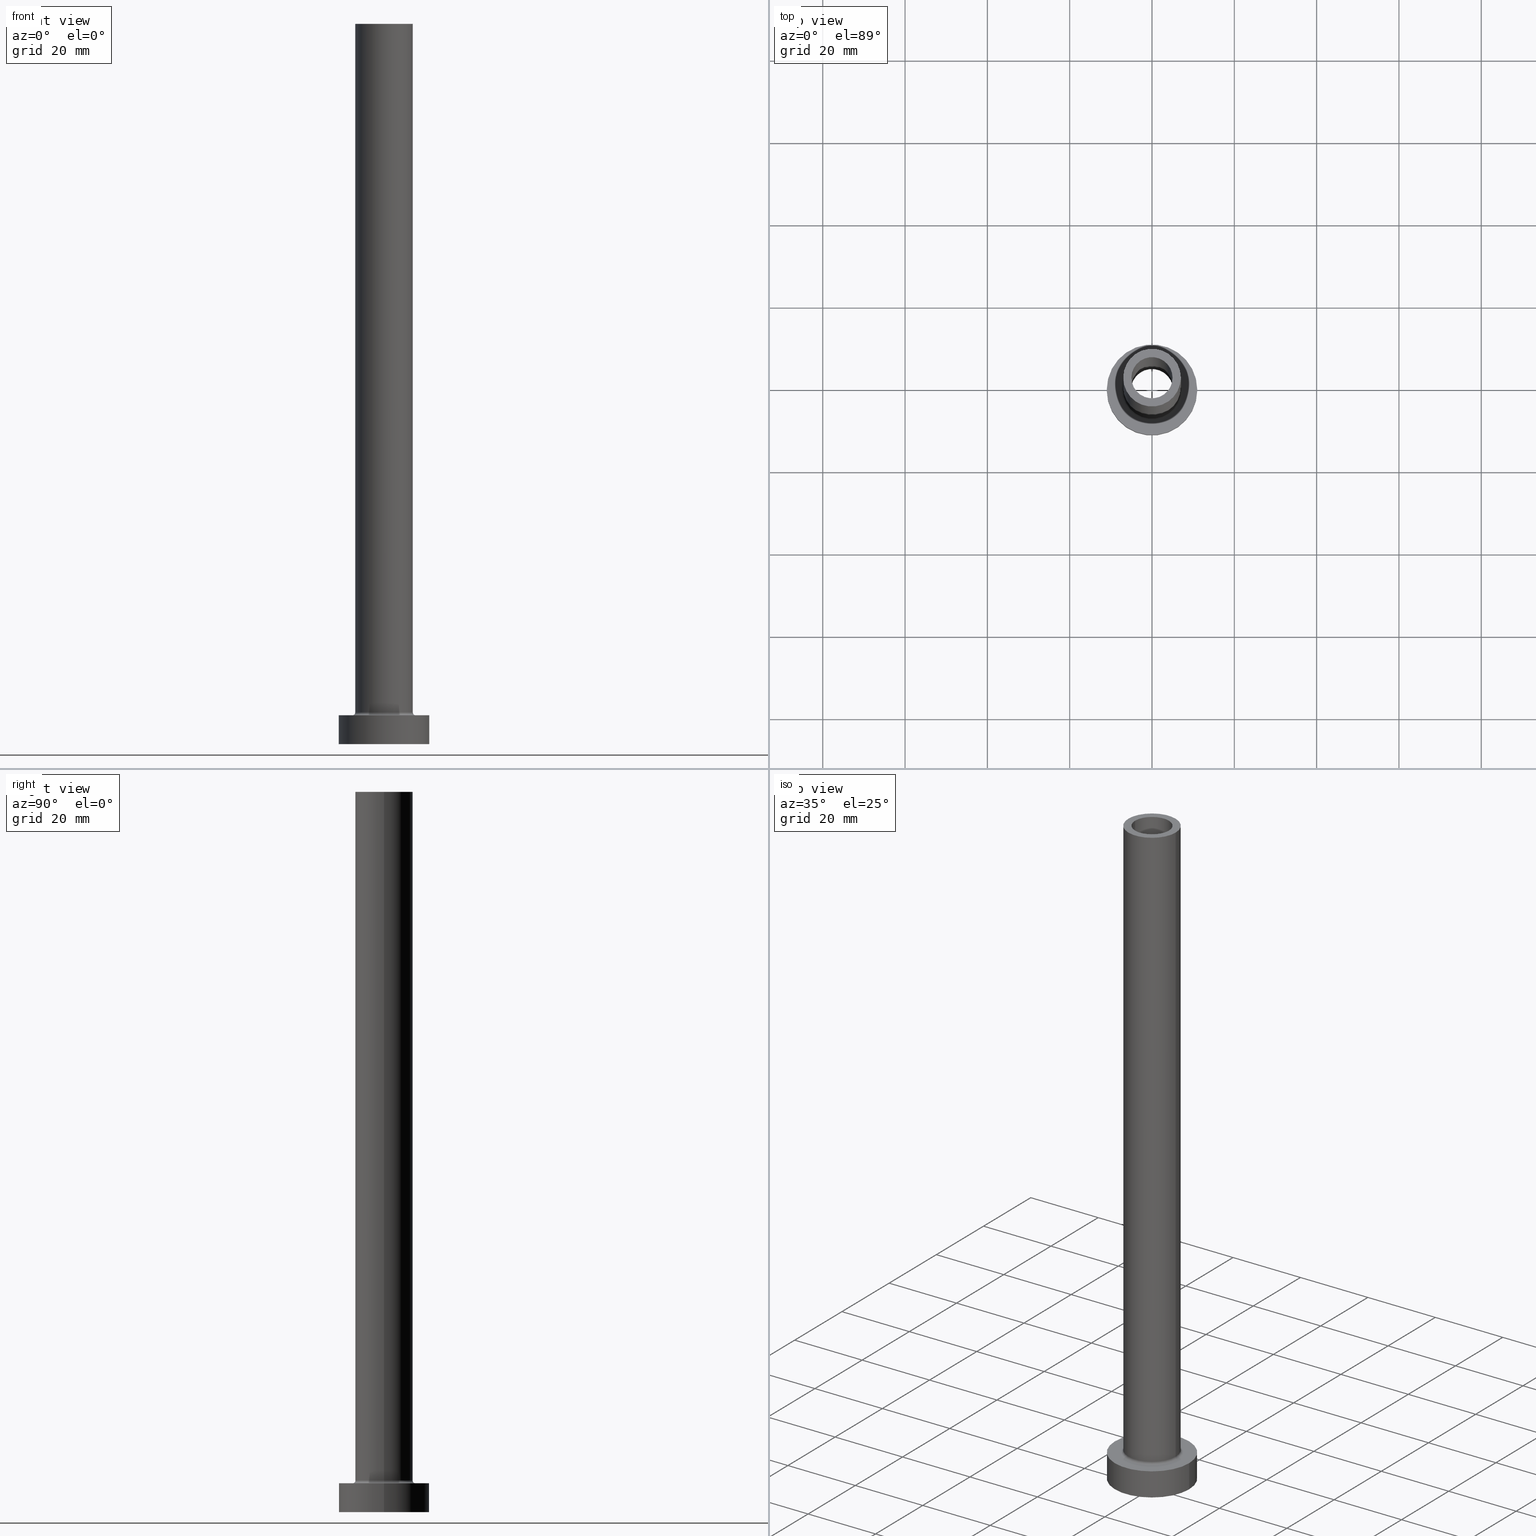
[diagram: canonical four-view strip — front | top / right | iso, engineering-drawing reading convention]
A machine part, canonical four-view strip (front | top / right | iso — engineering-drawing reading convention). The complete STEP part file that produces these views, byte-faithful:
ISO-10303-21;
HEADER;
FILE_DESCRIPTION (( 'STEP AP203' ),
    '1' );
FILE_NAME ('9c79.STEP',
    '2023-02-13T07:43:51',
    ( '' ),
    ( '' ),
    'SwSTEP 2.0',
    'SolidWorks 2019',
    '' );
FILE_SCHEMA (( 'CONFIG_CONTROL_DESIGN' ));
ENDSEC;

DATA;
#1 = CIRCLE ( 'NONE', #99, 7.700000000000001066 ) ;
#2 = LINE ( 'NONE', #104, #370 ) ;
#3 = DIRECTION ( 'NONE',  ( 1.000000000000000000, 0.000000000000000000, 0.000000000000000000 ) ) ;
#4 = CARTESIAN_POINT ( 'NONE',  ( -7.000000000000000888, 0.000000000000000000, 175.0000000000000284 ) ) ;
#5 = ORIENTED_EDGE ( 'NONE', *, *, #225, .F. ) ;
#6 = FACE_OUTER_BOUND ( 'NONE', #232, .T. ) ;
#7 = PERSON_AND_ORGANIZATION_ROLE ( 'creator' ) ;
#8 = AXIS2_PLACEMENT_3D ( 'NONE', #295, #378, #411 ) ;
#9 = ORIENTED_EDGE ( 'NONE', *, *, #338, .T. ) ;
#10 = DIRECTION ( 'NONE',  ( -0.000000000000000000, -0.000000000000000000, -1.000000000000000000 ) ) ;
#11 = EDGE_LOOP ( 'NONE', ( #354, #219 ) ) ;
#12 = ADVANCED_FACE ( 'NONE', ( #137, #40 ), #430, .F. ) ;
#13 = FACE_OUTER_BOUND ( 'NONE', #428, .T. ) ;
#14 = CARTESIAN_POINT ( 'NONE',  ( 11.00000000000000000, 1.347111479062088405E-15, 0.000000000000000000 ) ) ;
#15 = CARTESIAN_POINT ( 'NONE',  ( 0.000000000000000000, 0.000000000000000000, 130.0000000000000000 ) ) ;
#16 = CIRCLE ( 'NONE', #139, 7.000000000000000888 ) ;
#17 = COORDINATED_UNIVERSAL_TIME_OFFSET ( 1, 0, .AHEAD. ) ;
#18 = DIRECTION ( 'NONE',  ( 0.000000000000000000, 0.000000000000000000, -1.000000000000000000 ) ) ;
#19 = CALENDAR_DATE ( 2023, 13, 2 ) ;
#20 = CARTESIAN_POINT ( 'NONE',  ( -7.000000000000000888, 0.000000000000000000, 175.0000000000000284 ) ) ;
#21 = TOROIDAL_SURFACE ( 'NONE', #375, 7.700000000000001066, 0.6999999999999999556 ) ;
#22 = DIRECTION ( 'NONE',  ( 0.000000000000000000, 0.000000000000000000, 1.000000000000000000 ) ) ;
#23 = ORIENTED_EDGE ( 'NONE', *, *, #274, .F. ) ;
#24 = AXIS2_PLACEMENT_3D ( 'NONE', #168, #247, #3 ) ;
#25 = DIRECTION ( 'NONE',  ( 0.000000000000000000, 0.000000000000000000, -1.000000000000000000 ) ) ;
#26 = EDGE_CURVE ( 'NONE', #288, #86, #16, .T. ) ;
#27 = EDGE_LOOP ( 'NONE', ( #284, #388 ) ) ;
#28 = LINE ( 'NONE', #32, #143 ) ;
#29 = VERTEX_POINT ( 'NONE', #174 ) ;
#30 = APPLICATION_PROTOCOL_DEFINITION ( 'international standard', 'config_control_design', 1994, #69 ) ;
#31 = VECTOR ( 'NONE', #18, 1000.000000000000000 ) ;
#32 = CARTESIAN_POINT ( 'NONE',  ( -11.00000000000000000, 0.000000000000000000, 7.000000000000000000 ) ) ;
#33 = VERTEX_POINT ( 'NONE', #319 ) ;
#34 = DIRECTION ( 'NONE',  ( 0.000000000000000000, 0.000000000000000000, -1.000000000000000000 ) ) ;
#35 = ADVANCED_FACE ( 'NONE', ( #36, #6 ), #248, .T. ) ;
#36 = FACE_BOUND ( 'NONE', #11, .T. ) ;
#37 = AXIS2_PLACEMENT_3D ( 'NONE', #263, #107, #404 ) ;
#38 = CARTESIAN_POINT ( 'NONE',  ( 0.000000000000000000, 0.000000000000000000, 0.000000000000000000 ) ) ;
#39 = APPROVAL_PERSON_ORGANIZATION ( #351, #189, #237 ) ;
#40 = FACE_OUTER_BOUND ( 'NONE', #281, .T. ) ;
#41 = EDGE_CURVE ( 'NONE', #129, #152, #2, .T. ) ;
#42 = DIRECTION ( 'NONE',  ( 0.000000000000000000, 0.000000000000000000, 1.000000000000000000 ) ) ;
#43 = DIRECTION ( 'NONE',  ( 0.000000000000000000, 0.000000000000000000, 1.000000000000000000 ) ) ;
#44 = DATE_TIME_ROLE ( 'creation_date' ) ;
#45 = EDGE_CURVE ( 'NONE', #309, #210, #451, .T. ) ;
#46 = DIRECTION ( 'NONE',  ( -0.000000000000000000, -0.000000000000000000, -1.000000000000000000 ) ) ;
#47 = ORIENTED_EDGE ( 'NONE', *, *, #252, .F. ) ;
#48 = CARTESIAN_POINT ( 'NONE',  ( -5.150000000000001243, 0.000000000000000000, 130.0000000000000000 ) ) ;
#49 = CARTESIAN_POINT ( 'NONE',  ( 7.000000000000000888, 8.572527594031472204E-16, 175.0000000000000284 ) ) ;
#50 = EDGE_CURVE ( 'NONE', #129, #68, #304, .T. ) ;
#51 = CIRCLE ( 'NONE', #259, 5.000000000000000000 ) ;
#52 = PERSON_AND_ORGANIZATION_ROLE ( 'classification_officer' ) ;
#53 = CARTESIAN_POINT ( 'NONE',  ( 5.150000000000001243, 6.306931015608869596E-16, 130.0000000000000000 ) ) ;
#54 = EDGE_CURVE ( 'NONE', #68, #129, #151, .T. ) ;
#55 = CARTESIAN_POINT ( 'NONE',  ( 0.000000000000000000, 0.000000000000000000, 175.0000000000000284 ) ) ;
#56 = DIRECTION ( 'NONE',  ( 1.000000000000000000, 0.000000000000000000, 0.000000000000000000 ) ) ;
#57 = CARTESIAN_POINT ( 'NONE',  ( 0.000000000000000000, 0.000000000000000000, 0.000000000000000000 ) ) ;
#58 = VECTOR ( 'NONE', #228, 1000.000000000000000 ) ;
#59 = ORIENTED_EDGE ( 'NONE', *, *, #89, .T. ) ;
#60 = DIRECTION ( 'NONE',  ( 0.000000000000000000, 0.000000000000000000, 1.000000000000000000 ) ) ;
#61 = FACE_OUTER_BOUND ( 'NONE', #289, .T. ) ;
#62 = AXIS2_PLACEMENT_3D ( 'NONE', #269, #385, #341 ) ;
#63 = CARTESIAN_POINT ( 'NONE',  ( -5.000000000000000000, 0.000000000000000000, 175.0000000000000284 ) ) ;
#64 = ORIENTED_EDGE ( 'NONE', *, *, #45, .F. ) ;
#65 = EDGE_LOOP ( 'NONE', ( #9, #384 ) ) ;
#66 = EDGE_CURVE ( 'NONE', #86, #288, #167, .T. ) ;
#67 = DIRECTION ( 'NONE',  ( 1.000000000000000000, 0.000000000000000000, 0.000000000000000000 ) ) ;
#68 = VERTEX_POINT ( 'NONE', #399 ) ;
#69 = APPLICATION_CONTEXT ( 'configuration controlled 3d designs of mechanical parts and assemblies' ) ;
#70 = CARTESIAN_POINT ( 'NONE',  ( -7.700000000000001066, 9.429780353434621002E-16, 7.700000000000012612 ) ) ;
#71 = VERTEX_POINT ( 'NONE', #321 ) ;
#72 = DIRECTION ( 'NONE',  ( 1.000000000000000000, 0.000000000000000000, 0.000000000000000000 ) ) ;
#73 = PERSON_AND_ORGANIZATION ( #96, #183 ) ;
#74 = DIRECTION ( 'NONE',  ( 0.000000000000000000, 0.000000000000000000, 1.000000000000000000 ) ) ;
#75 = CIRCLE ( 'NONE', #121, 7.000000000000000888 ) ;
#76 = CIRCLE ( 'NONE', #226, 7.700000000000001066 ) ;
#77 = CARTESIAN_POINT ( 'NONE',  ( -5.150000000000001243, 0.000000000000000000, 144.5663996924429000 ) ) ;
#78 = CARTESIAN_POINT ( 'NONE',  ( 0.000000000000000000, 0.000000000000000000, 175.0000000000000284 ) ) ;
#79 = PERSON_AND_ORGANIZATION ( #96, #183 ) ;
#80 = CARTESIAN_POINT ( 'NONE',  ( 7.000000000000000888, 8.572527594031472204E-16, 175.0000000000000284 ) ) ;
#81 = CIRCLE ( 'NONE', #164, 7.000000000000000888 ) ;
#82 = CALENDAR_DATE ( 2023, 13, 2 ) ;
#83 = DIRECTION ( 'NONE',  ( -0.000000000000000000, -0.000000000000000000, -1.000000000000000000 ) ) ;
#84 = CARTESIAN_POINT ( 'NONE',  ( 0.000000000000000000, 0.000000000000000000, 7.000000000000000000 ) ) ;
#85 = CARTESIAN_POINT ( 'NONE',  ( 5.000000000000000000, 6.123233995736766282E-16, 130.0000000000000000 ) ) ;
#86 = VERTEX_POINT ( 'NONE', #4 ) ;
#87 = CC_DESIGN_APPROVAL ( #189, ( #120 ) ) ;
#88 = FACE_OUTER_BOUND ( 'NONE', #461, .T. ) ;
#89 = EDGE_CURVE ( 'NONE', #210, #309, #397, .T. ) ;
#90 = CYLINDRICAL_SURFACE ( 'NONE', #382, 7.000000000000000888 ) ;
#91 = CARTESIAN_POINT ( 'NONE',  ( 0.000000000000000000, 0.000000000000000000, 7.700000000000012612 ) ) ;
#92 = EDGE_LOOP ( 'NONE', ( #134, #398 ) ) ;
#93 = VECTOR ( 'NONE', #34, 1000.000000000000000 ) ;
#94 = ORIENTED_EDGE ( 'NONE', *, *, #442, .T. ) ;
#95 = CARTESIAN_POINT ( 'NONE',  ( 0.000000000000000000, 0.000000000000000000, 7.000000000000000000 ) ) ;
#96 = PERSON ( 'NEUR�EN�', 'NEUR�EN�', 'NEUR�EN�', ('NEUR�EN�'), ('NEUR�EN�'), ('NEUR�EN�') ) ;
#97 = DIRECTION ( 'NONE',  ( 0.000000000000000000, 0.000000000000000000, 1.000000000000000000 ) ) ;
#98 = ORIENTED_EDGE ( 'NONE', *, *, #50, .T. ) ;
#99 = AXIS2_PLACEMENT_3D ( 'NONE', #450, #83, #337 ) ;
#100 = CC_DESIGN_APPROVAL ( #162, ( #302 ) ) ;
#101 = DIRECTION ( 'NONE',  ( 1.000000000000000000, 0.000000000000000000, -0.000000000000000000 ) ) ;
#102 = EDGE_LOOP ( 'NONE', ( #242, #439, #278, #276 ) ) ;
#103 = EDGE_CURVE ( 'NONE', #179, #138, #186, .T. ) ;
#104 = CARTESIAN_POINT ( 'NONE',  ( 11.00000000000000000, 1.347111479062088405E-15, 7.000000000000000000 ) ) ;
#105 = CARTESIAN_POINT ( 'NONE',  ( 0.000000000000000000, 0.000000000000000000, 7.000000000000000000 ) ) ;
#106 = EDGE_CURVE ( 'NONE', #249, #160, #76, .T. ) ;
#107 = DIRECTION ( 'NONE',  ( 0.000000000000000000, 0.000000000000000000, 1.000000000000000000 ) ) ;
#108 = AXIS2_PLACEMENT_3D ( 'NONE', #268, #292, #297 ) ;
#109 = PLANE ( 'NONE',  #318 ) ;
#110 = DATE_AND_TIME ( #290, #312 ) ;
#111 = CARTESIAN_POINT ( 'NONE',  ( 0.000000000000000000, 0.000000000000000000, 0.000000000000000000 ) ) ;
#112 = PLANE ( 'NONE',  #108 ) ;
#113 = VECTOR ( 'NONE', #25, 1000.000000000000000 ) ;
#114 = CC_DESIGN_SECURITY_CLASSIFICATION ( #302, ( #383 ) ) ;
#115 = DIRECTION ( 'NONE',  ( 0.000000000000000000, 0.000000000000000000, -1.000000000000000000 ) ) ;
#116 = AXIS2_PLACEMENT_3D ( 'NONE', #105, #435, #209 ) ;
#117 = CYLINDRICAL_SURFACE ( 'NONE', #403, 11.00000000000000000 ) ;
#118 = CARTESIAN_POINT ( 'NONE',  ( 0.000000000000000000, 0.000000000000000000, 7.700000000000012612 ) ) ;
#119 = ORIENTED_EDGE ( 'NONE', *, *, #106, .F. ) ;
#120 = PRODUCT_DEFINITION ( 'NEZN�M�', '', #383, #426 ) ;
#121 = AXIS2_PLACEMENT_3D ( 'NONE', #118, #339, #344 ) ;
#122 = LOCAL_TIME ( 8, 43, 51.00000000000000000, #386 ) ;
#123 = DIRECTION ( 'NONE',  ( 1.000000000000000000, 0.000000000000000000, 0.000000000000000000 ) ) ;
#124 = AXIS2_PLACEMENT_3D ( 'NONE', #95, #74, #72 ) ;
#125 = EDGE_CURVE ( 'NONE', #236, #249, #224, .T. ) ;
#126 = FACE_OUTER_BOUND ( 'NONE', #254, .T. ) ;
#127 = ORIENTED_EDGE ( 'NONE', *, *, #225, .T. ) ;
#128 = DIRECTION ( 'NONE',  ( 0.000000000000000000, 0.000000000000000000, 1.000000000000000000 ) ) ;
#129 = VERTEX_POINT ( 'NONE', #257 ) ;
#130 = AXIS2_PLACEMENT_3D ( 'NONE', #57, #241, #279 ) ;
#131 = ORIENTED_EDGE ( 'NONE', *, *, #50, .F. ) ;
#132 = EDGE_CURVE ( 'NONE', #210, #138, #355, .T. ) ;
#133 = DIRECTION ( 'NONE',  ( 1.000000000000000000, 0.000000000000000000, 0.000000000000000000 ) ) ;
#134 = ORIENTED_EDGE ( 'NONE', *, *, #379, .F. ) ;
#135 = CC_DESIGN_PERSON_AND_ORGANIZATION_ASSIGNMENT ( #410, #7, ( #383 ) ) ;
#136 = AXIS2_PLACEMENT_3D ( 'NONE', #372, #441, #369 ) ;
#137 = FACE_BOUND ( 'NONE', #65, .T. ) ;
#138 = VERTEX_POINT ( 'NONE', #330 ) ;
#139 = AXIS2_PLACEMENT_3D ( 'NONE', #366, #42, #401 ) ;
#140 = DIRECTION ( 'NONE',  ( 1.000000000000000000, 0.000000000000000000, 0.000000000000000000 ) ) ;
#141 = CARTESIAN_POINT ( 'NONE',  ( 0.000000000000000000, 0.000000000000000000, 144.5663996924429000 ) ) ;
#142 = FACE_BOUND ( 'NONE', #27, .T. ) ;
#143 = VECTOR ( 'NONE', #235, 1000.000000000000000 ) ;
#144 = ADVANCED_FACE ( 'NONE', ( #218 ), #148, .F. ) ;
#145 = DIRECTION ( 'NONE',  ( 1.000000000000000000, 0.000000000000000000, 0.000000000000000000 ) ) ;
#146 = CYLINDRICAL_SURFACE ( 'NONE', #149, 7.000000000000000888 ) ;
#147 = DATE_AND_TIME ( #19, #203 ) ;
#148 = CYLINDRICAL_SURFACE ( 'NONE', #217, 5.150000000000001243 ) ;
#149 = AXIS2_PLACEMENT_3D ( 'NONE', #55, #46, #374 ) ;
#150 = DIRECTION ( 'NONE',  ( -1.000000000000000000, 0.000000000000000000, 0.000000000000000000 ) ) ;
#151 = CIRCLE ( 'NONE', #427, 11.00000000000000000 ) ;
#152 = VERTEX_POINT ( 'NONE', #14 ) ;
#153 = CARTESIAN_POINT ( 'NONE',  ( 5.000000000000000000, 6.123233995736766282E-16, 175.0000000000000284 ) ) ;
#154 = DIRECTION ( 'NONE',  ( -0.000000000000000000, -0.000000000000000000, -1.000000000000000000 ) ) ;
#155 = EDGE_LOOP ( 'NONE', ( #213, #127, #94, #402 ) ) ;
#156 = DIRECTION ( 'NONE',  ( 0.000000000000000000, 0.000000000000000000, -1.000000000000000000 ) ) ;
#157 = ORIENTED_EDGE ( 'NONE', *, *, #329, .T. ) ;
#158 = CARTESIAN_POINT ( 'NONE',  ( 0.000000000000000000, 0.000000000000000000, 0.000000000000000000 ) ) ;
#159 = CARTESIAN_POINT ( 'NONE',  ( 0.000000000000000000, 0.000000000000000000, 144.5663996924429000 ) ) ;
#160 = VERTEX_POINT ( 'NONE', #440 ) ;
#161 = DATE_AND_TIME ( #313, #122 ) ;
#162 = APPROVAL ( #327, 'NEUR�EN�' ) ;
#163 = DIRECTION ( 'NONE',  ( 0.000000000000000000, 0.000000000000000000, 1.000000000000000000 ) ) ;
#164 = AXIS2_PLACEMENT_3D ( 'NONE', #414, #223, #376 ) ;
#165 = ORIENTED_EDGE ( 'NONE', *, *, #89, .F. ) ;
#166 = ORIENTED_EDGE ( 'NONE', *, *, #442, .F. ) ;
#167 = CIRCLE ( 'NONE', #24, 7.000000000000000888 ) ;
#168 = CARTESIAN_POINT ( 'NONE',  ( 0.000000000000000000, 0.000000000000000000, 175.0000000000000284 ) ) ;
#169 = ADVANCED_FACE ( 'NONE', ( #188 ), #178, .F. ) ;
#170 = CARTESIAN_POINT ( 'NONE',  ( 0.000000000000000000, 0.000000000000000000, 130.0000000000000000 ) ) ;
#171 = APPROVAL_ROLE ( '' ) ;
#172 = ADVANCED_BREP_SHAPE_REPRESENTATION ( '9c79', ( #429, #184 ), #173 ) ;
#173 =( GEOMETRIC_REPRESENTATION_CONTEXT ( 3 ) GLOBAL_UNCERTAINTY_ASSIGNED_CONTEXT ( ( #356 ) ) GLOBAL_UNIT_ASSIGNED_CONTEXT ( ( #206, #244, #303 ) ) REPRESENTATION_CONTEXT ( 'NONE', 'WORKASPACE' ) );
#174 = CARTESIAN_POINT ( 'NONE',  ( -5.000000000000000000, 0.000000000000000000, 130.0000000000000000 ) ) ;
#175 = COORDINATED_UNIVERSAL_TIME_OFFSET ( 1, 0, .AHEAD. ) ;
#176 = ORIENTED_EDGE ( 'NONE', *, *, #262, .T. ) ;
#177 = AXIS2_PLACEMENT_3D ( 'NONE', #170, #97, #101 ) ;
#178 = CYLINDRICAL_SURFACE ( 'NONE', #349, 5.000000000000000000 ) ;
#179 = VERTEX_POINT ( 'NONE', #222 ) ;
#180 = CC_DESIGN_PERSON_AND_ORGANIZATION_ASSIGNMENT ( #407, #52, ( #302 ) ) ;
#181 = DIRECTION ( 'NONE',  ( -0.000000000000000000, -0.000000000000000000, -1.000000000000000000 ) ) ;
#182 = DIRECTION ( 'NONE',  ( -1.000000000000000000, 0.000000000000000000, 0.000000000000000000 ) ) ;
#183 = ORGANIZATION ( 'NEUR�EN�', 'NEUR�EN�', '' ) ;
#184 = AXIS2_PLACEMENT_3D ( 'NONE', #158, #238, #56 ) ;
#185 = CC_DESIGN_APPROVAL ( #425, ( #383 ) ) ;
#186 = CIRCLE ( 'NONE', #457, 5.150000000000001243 ) ;
#187 = APPROVAL_DATE_TIME ( #110, #425 ) ;
#188 = FACE_OUTER_BOUND ( 'NONE', #196, .T. ) ;
#189 = APPROVAL ( #413, 'NEUR�EN�' ) ;
#190 = DIRECTION ( 'NONE',  ( 0.000000000000000000, 0.000000000000000000, 1.000000000000000000 ) ) ;
#191 = EDGE_CURVE ( 'NONE', #33, #212, #448, .T. ) ;
#192 = COORDINATED_UNIVERSAL_TIME_OFFSET ( 1, 0, .AHEAD. ) ;
#193 = PRODUCT ( '9c79', '9c79', '', ( #347 ) ) ;
#194 = FACE_OUTER_BOUND ( 'NONE', #286, .T. ) ;
#195 = DIRECTION ( 'NONE',  ( -1.000000000000000000, 0.000000000000000000, 0.000000000000000000 ) ) ;
#196 = EDGE_LOOP ( 'NONE', ( #421, #198, #365, #47 ) ) ;
#197 = DIRECTION ( 'NONE',  ( 1.000000000000000000, 0.000000000000000000, 0.000000000000000000 ) ) ;
#198 = ORIENTED_EDGE ( 'NONE', *, *, #208, .T. ) ;
#199 = DIRECTION ( 'NONE',  ( 0.000000000000000000, 0.000000000000000000, -1.000000000000000000 ) ) ;
#200 = ORIENTED_EDGE ( 'NONE', *, *, #26, .T. ) ;
#201 = CIRCLE ( 'NONE', #368, 11.00000000000000000 ) ;
#202 = APPLICATION_PROTOCOL_DEFINITION ( 'international standard', 'config_control_design', 1994, #229 ) ;
#203 = LOCAL_TIME ( 8, 43, 51.00000000000000000, #446 ) ;
#204 = DIRECTION ( 'NONE',  ( -0.000000000000000000, -0.000000000000000000, -1.000000000000000000 ) ) ;
#205 = ORIENTED_EDGE ( 'NONE', *, *, #54, .T. ) ;
#206 =( LENGTH_UNIT ( ) NAMED_UNIT ( * ) SI_UNIT ( .MILLI., .METRE. ) );
#207 = ORIENTED_EDGE ( 'NONE', *, *, #41, .T. ) ;
#208 = EDGE_CURVE ( 'NONE', #212, #33, #282, .T. ) ;
#209 = DIRECTION ( 'NONE',  ( 1.000000000000000000, 0.000000000000000000, -0.000000000000000000 ) ) ;
#210 = VERTEX_POINT ( 'NONE', #48 ) ;
#211 = ADVANCED_FACE ( 'NONE', ( #260 ), #146, .T. ) ;
#212 = VERTEX_POINT ( 'NONE', #265 ) ;
#213 = ORIENTED_EDGE ( 'NONE', *, *, #26, .F. ) ;
#214 = DIRECTION ( 'NONE',  ( 1.000000000000000000, 0.000000000000000000, 0.000000000000000000 ) ) ;
#215 = DATE_AND_TIME ( #267, #243 ) ;
#216 = ORIENTED_EDGE ( 'NONE', *, *, #396, .F. ) ;
#217 = AXIS2_PLACEMENT_3D ( 'NONE', #141, #294, #182 ) ;
#218 = FACE_OUTER_BOUND ( 'NONE', #307, .T. ) ;
#219 = ORIENTED_EDGE ( 'NONE', *, *, #106, .T. ) ;
#220 = LINE ( 'NONE', #49, #273 ) ;
#221 = ADVANCED_FACE ( 'NONE', ( #142, #13 ), #112, .T. ) ;
#222 = CARTESIAN_POINT ( 'NONE',  ( 5.150000000000001243, 6.306931015608869596E-16, 0.000000000000000000 ) ) ;
#223 = DIRECTION ( 'NONE',  ( 0.000000000000000000, 0.000000000000000000, 1.000000000000000000 ) ) ;
#224 = CIRCLE ( 'NONE', #433, 0.7000000000000000666 ) ;
#225 = EDGE_CURVE ( 'NONE', #288, #272, #220, .T. ) ;
#226 = AXIS2_PLACEMENT_3D ( 'NONE', #253, #10, #140 ) ;
#227 = PERSON_AND_ORGANIZATION_ROLE ( 'design_supplier' ) ;
#228 = DIRECTION ( 'NONE',  ( -0.000000000000000000, -0.000000000000000000, -1.000000000000000000 ) ) ;
#229 = APPLICATION_CONTEXT ( 'configuration controlled 3d designs of mechanical parts and assemblies' ) ;
#230 = CARTESIAN_POINT ( 'NONE',  ( 0.000000000000000000, 0.000000000000000000, 0.000000000000000000 ) ) ;
#231 = DIRECTION ( 'NONE',  ( 1.000000000000000000, 0.000000000000000000, 0.000000000000000000 ) ) ;
#232 = EDGE_LOOP ( 'NONE', ( #205, #98 ) ) ;
#233 = AXIS2_PLACEMENT_3D ( 'NONE', #239, #315, #417 ) ;
#234 = ADVANCED_FACE ( 'NONE', ( #335, #331 ), #109, .F. ) ;
#235 = DIRECTION ( 'NONE',  ( -0.000000000000000000, -0.000000000000000000, -1.000000000000000000 ) ) ;
#236 = VERTEX_POINT ( 'NONE', #447 ) ;
#237 = APPROVAL_ROLE ( '' ) ;
#238 = DIRECTION ( 'NONE',  ( 0.000000000000000000, 0.000000000000000000, 1.000000000000000000 ) ) ;
#239 = CARTESIAN_POINT ( 'NONE',  ( 0.000000000000000000, 0.000000000000000000, 130.0000000000000000 ) ) ;
#240 = PERSON_AND_ORGANIZATION ( #96, #183 ) ;
#241 = DIRECTION ( 'NONE',  ( -0.000000000000000000, -0.000000000000000000, -1.000000000000000000 ) ) ;
#242 = ORIENTED_EDGE ( 'NONE', *, *, #41, .F. ) ;
#243 = LOCAL_TIME ( 8, 43, 51.00000000000000000, #175 ) ;
#244 =( NAMED_UNIT ( * ) PLANE_ANGLE_UNIT ( ) SI_UNIT ( $, .RADIAN. ) );
#245 = ORIENTED_EDGE ( 'NONE', *, *, #306, .F. ) ;
#246 = AXIS2_PLACEMENT_3D ( 'NONE', #317, #163, #255 ) ;
#247 = DIRECTION ( 'NONE',  ( 0.000000000000000000, 0.000000000000000000, 1.000000000000000000 ) ) ;
#248 = PLANE ( 'NONE',  #116 ) ;
#249 = VERTEX_POINT ( 'NONE', #333 ) ;
#250 = TOROIDAL_SURFACE ( 'NONE', #360, 7.700000000000001066, 0.6999999999999999556 ) ;
#251 = LOCAL_TIME ( 8, 43, 51.00000000000000000, #17 ) ;
#252 = EDGE_CURVE ( 'NONE', #324, #29, #51, .T. ) ;
#253 = CARTESIAN_POINT ( 'NONE',  ( 0.000000000000000000, 0.000000000000000000, 7.000000000000000000 ) ) ;
#254 = EDGE_LOOP ( 'NONE', ( #5, #391, #328, #362 ) ) ;
#255 = DIRECTION ( 'NONE',  ( 1.000000000000000000, 0.000000000000000000, 0.000000000000000000 ) ) ;
#256 = ORIENTED_EDGE ( 'NONE', *, *, #262, .F. ) ;
#257 = CARTESIAN_POINT ( 'NONE',  ( 11.00000000000000000, 1.347111479062088405E-15, 7.000000000000000000 ) ) ;
#258 = CC_DESIGN_PERSON_AND_ORGANIZATION_ASSIGNMENT ( #79, #227, ( #383 ) ) ;
#259 = AXIS2_PLACEMENT_3D ( 'NONE', #15, #190, #145 ) ;
#260 = FACE_OUTER_BOUND ( 'NONE', #155, .T. ) ;
#261 = DIRECTION ( 'NONE',  ( 0.000000000000000000, 0.000000000000000000, 1.000000000000000000 ) ) ;
#262 = EDGE_CURVE ( 'NONE', #272, #160, #455, .T. ) ;
#263 = CARTESIAN_POINT ( 'NONE',  ( 0.000000000000000000, 0.000000000000000000, 175.0000000000000284 ) ) ;
#264 = PERSON_AND_ORGANIZATION_ROLE ( 'creator' ) ;
#265 = CARTESIAN_POINT ( 'NONE',  ( 5.000000000000000000, 6.123233995736766282E-16, 175.0000000000000284 ) ) ;
#266 = AXIS2_PLACEMENT_3D ( 'NONE', #84, #204, #353 ) ;
#267 = CALENDAR_DATE ( 2023, 13, 2 ) ;
#268 = CARTESIAN_POINT ( 'NONE',  ( 0.000000000000000000, 0.000000000000000000, 175.0000000000000284 ) ) ;
#269 = CARTESIAN_POINT ( 'NONE',  ( 0.000000000000000000, 0.000000000000000000, 175.0000000000000284 ) ) ;
#270 = CC_DESIGN_DATE_AND_TIME_ASSIGNMENT ( #443, #44, ( #120 ) ) ;
#271 = LINE ( 'NONE', #153, #93 ) ;
#272 = VERTEX_POINT ( 'NONE', #444 ) ;
#273 = VECTOR ( 'NONE', #181, 1000.000000000000000 ) ;
#274 = EDGE_CURVE ( 'NONE', #160, #249, #1, .T. ) ;
#275 = LINE ( 'NONE', #420, #340 ) ;
#276 = ORIENTED_EDGE ( 'NONE', *, *, #445, .T. ) ;
#277 = DIRECTION ( 'NONE',  ( -1.000000000000000000, 0.000000000000000000, 0.000000000000000000 ) ) ;
#278 = ORIENTED_EDGE ( 'NONE', *, *, #314, .T. ) ;
#279 = DIRECTION ( 'NONE',  ( 1.000000000000000000, 0.000000000000000000, 0.000000000000000000 ) ) ;
#280 = EDGE_CURVE ( 'NONE', #86, #236, #408, .T. ) ;
#281 = EDGE_LOOP ( 'NONE', ( #165, #64 ) ) ;
#282 = CIRCLE ( 'NONE', #136, 5.000000000000000000 ) ;
#283 = ORIENTED_EDGE ( 'NONE', *, *, #314, .F. ) ;
#284 = ORIENTED_EDGE ( 'NONE', *, *, #191, .F. ) ;
#285 = PRODUCT_RELATED_PRODUCT_CATEGORY ( 'detail', '', ( #193 ) ) ;
#286 = EDGE_LOOP ( 'NONE', ( #131, #207, #390, #283 ) ) ;
#287 = SHAPE_DEFINITION_REPRESENTATION ( #298, #172 ) ;
#288 = VERTEX_POINT ( 'NONE', #80 ) ;
#289 = EDGE_LOOP ( 'NONE', ( #311, #359, #363, #316 ) ) ;
#290 = CALENDAR_DATE ( 2023, 13, 2 ) ;
#291 = DIRECTION ( 'NONE',  ( 1.224646799147353207E-16, 1.000000000000000000, -0.000000000000000000 ) ) ;
#292 = DIRECTION ( 'NONE',  ( 0.000000000000000000, 0.000000000000000000, 1.000000000000000000 ) ) ;
#293 = CIRCLE ( 'NONE', #130, 5.150000000000001243 ) ;
#294 = DIRECTION ( 'NONE',  ( 0.000000000000000000, 0.000000000000000000, -1.000000000000000000 ) ) ;
#295 = CARTESIAN_POINT ( 'NONE',  ( 7.700000000000001066, 0.000000000000000000, 7.700000000000012612 ) ) ;
#296 = DATE_TIME_ROLE ( 'classification_date' ) ;
#297 = DIRECTION ( 'NONE',  ( 1.000000000000000000, 0.000000000000000000, -0.000000000000000000 ) ) ;
#298 = PRODUCT_DEFINITION_SHAPE ( 'NONE', 'NONE',  #120 ) ;
#299 = APPROVAL_DATE_TIME ( #147, #162 ) ;
#300 = DIRECTION ( 'NONE',  ( -1.000000000000000000, 0.000000000000000000, 0.000000000000000000 ) ) ;
#301 = CIRCLE ( 'NONE', #233, 5.000000000000000000 ) ;
#302 = SECURITY_CLASSIFICATION ( '', '', #377 ) ;
#303 =( NAMED_UNIT ( * ) SI_UNIT ( $, .STERADIAN. ) SOLID_ANGLE_UNIT ( ) );
#304 = CIRCLE ( 'NONE', #124, 11.00000000000000000 ) ;
#305 = CYLINDRICAL_SURFACE ( 'NONE', #62, 5.000000000000000000 ) ;
#306 = EDGE_CURVE ( 'NONE', #236, #272, #81, .T. ) ;
#307 = EDGE_LOOP ( 'NONE', ( #59, #371, #400, #395 ) ) ;
#308 = DIRECTION ( 'NONE',  ( 1.000000000000000000, 0.000000000000000000, 0.000000000000000000 ) ) ;
#309 = VERTEX_POINT ( 'NONE', #53 ) ;
#310 = CARTESIAN_POINT ( 'NONE',  ( 0.000000000000000000, 0.000000000000000000, 0.000000000000000000 ) ) ;
#311 = ORIENTED_EDGE ( 'NONE', *, *, #449, .F. ) ;
#312 = LOCAL_TIME ( 8, 43, 51.00000000000000000, #192 ) ;
#313 = CALENDAR_DATE ( 2023, 13, 2 ) ;
#314 = EDGE_CURVE ( 'NONE', #68, #71, #28, .T. ) ;
#315 = DIRECTION ( 'NONE',  ( 0.000000000000000000, 0.000000000000000000, 1.000000000000000000 ) ) ;
#316 = ORIENTED_EDGE ( 'NONE', *, *, #379, .T. ) ;
#317 = CARTESIAN_POINT ( 'NONE',  ( 0.000000000000000000, 0.000000000000000000, 130.0000000000000000 ) ) ;
#318 = AXIS2_PLACEMENT_3D ( 'NONE', #111, #261, #406 ) ;
#319 = CARTESIAN_POINT ( 'NONE',  ( -5.000000000000000000, 0.000000000000000000, 175.0000000000000284 ) ) ;
#320 = ADVANCED_FACE ( 'NONE', ( #88 ), #305, .F. ) ;
#321 = CARTESIAN_POINT ( 'NONE',  ( -11.00000000000000000, 0.000000000000000000, 0.000000000000000000 ) ) ;
#322 = APPROVAL_DATE_TIME ( #161, #189 ) ;
#323 = ORIENTED_EDGE ( 'NONE', *, *, #431, .F. ) ;
#324 = VERTEX_POINT ( 'NONE', #85 ) ;
#325 = CIRCLE ( 'NONE', #332, 11.00000000000000000 ) ;
#326 = DIRECTION ( 'NONE',  ( -0.000000000000000000, -0.000000000000000000, -1.000000000000000000 ) ) ;
#327 = APPROVAL_STATUS ( 'not_yet_approved' ) ;
#328 = ORIENTED_EDGE ( 'NONE', *, *, #280, .T. ) ;
#329 = EDGE_CURVE ( 'NONE', #212, #324, #271, .T. ) ;
#330 = CARTESIAN_POINT ( 'NONE',  ( -5.150000000000001243, 0.000000000000000000, 0.000000000000000000 ) ) ;
#331 = FACE_OUTER_BOUND ( 'NONE', #423, .T. ) ;
#332 = AXIS2_PLACEMENT_3D ( 'NONE', #230, #22, #308 ) ;
#333 = CARTESIAN_POINT ( 'NONE',  ( -7.700000000000001066, 9.429780353434621002E-16, 7.000000000000006217 ) ) ;
#334 = ADVANCED_FACE ( 'NONE', ( #126 ), #90, .T. ) ;
#335 = FACE_BOUND ( 'NONE', #92, .T. ) ;
#336 = APPROVAL_ROLE ( '' ) ;
#337 = DIRECTION ( 'NONE',  ( 1.000000000000000000, 0.000000000000000000, 0.000000000000000000 ) ) ;
#338 = EDGE_CURVE ( 'NONE', #29, #324, #301, .T. ) ;
#339 = DIRECTION ( 'NONE',  ( 0.000000000000000000, 0.000000000000000000, 1.000000000000000000 ) ) ;
#340 = VECTOR ( 'NONE', #156, 1000.000000000000000 ) ;
#341 = DIRECTION ( 'NONE',  ( -1.000000000000000000, 0.000000000000000000, 0.000000000000000000 ) ) ;
#342 = ORIENTED_EDGE ( 'NONE', *, *, #125, .T. ) ;
#343 = PERSON_AND_ORGANIZATION ( #96, #183 ) ;
#344 = DIRECTION ( 'NONE',  ( 1.000000000000000000, 0.000000000000000000, 0.000000000000000000 ) ) ;
#345 = ORIENTED_EDGE ( 'NONE', *, *, #445, .F. ) ;
#346 = CC_DESIGN_PERSON_AND_ORGANIZATION_ASSIGNMENT ( #343, #419, ( #193 ) ) ;
#347 = MECHANICAL_CONTEXT ( 'NONE', #229, 'mechanical' ) ;
#348 = CARTESIAN_POINT ( 'NONE',  ( 0.000000000000000000, 0.000000000000000000, 7.000000000000000000 ) ) ;
#349 = AXIS2_PLACEMENT_3D ( 'NONE', #78, #115, #300 ) ;
#350 = ORIENTED_EDGE ( 'NONE', *, *, #66, .T. ) ;
#351 = PERSON_AND_ORGANIZATION ( #96, #183 ) ;
#352 = CLOSED_SHELL ( 'NONE', ( #320, #144, #392, #211, #434, #405, #35, #234, #334, #221, #357, #412, #12, #169 ) ) ;
#353 = DIRECTION ( 'NONE',  ( -1.000000000000000000, 0.000000000000000000, 0.000000000000000000 ) ) ;
#354 = ORIENTED_EDGE ( 'NONE', *, *, #274, .T. ) ;
#355 = LINE ( 'NONE', #77, #31 ) ;
#356 = UNCERTAINTY_MEASURE_WITH_UNIT (LENGTH_MEASURE( 1.000000000000000082E-05 ), #206, 'distance_accuracy_value', 'NONE');
#357 = ADVANCED_FACE ( 'NONE', ( #422 ), #250, .F. ) ;
#358 = DIRECTION ( 'NONE',  ( 0.000000000000000000, 0.000000000000000000, 1.000000000000000000 ) ) ;
#359 = ORIENTED_EDGE ( 'NONE', *, *, #45, .T. ) ;
#360 = AXIS2_PLACEMENT_3D ( 'NONE', #91, #128, #231 ) ;
#361 = APPROVAL_PERSON_ORGANIZATION ( #73, #425, #171 ) ;
#362 = ORIENTED_EDGE ( 'NONE', *, *, #306, .T. ) ;
#363 = ORIENTED_EDGE ( 'NONE', *, *, #132, .T. ) ;
#364 = APPROVAL_STATUS ( 'not_yet_approved' ) ;
#365 = ORIENTED_EDGE ( 'NONE', *, *, #396, .T. ) ;
#366 = CARTESIAN_POINT ( 'NONE',  ( 0.000000000000000000, 0.000000000000000000, 175.0000000000000284 ) ) ;
#367 = PERSON_AND_ORGANIZATION ( #96, #183 ) ;
#368 = AXIS2_PLACEMENT_3D ( 'NONE', #310, #456, #123 ) ;
#369 = DIRECTION ( 'NONE',  ( 1.000000000000000000, 0.000000000000000000, 0.000000000000000000 ) ) ;
#370 = VECTOR ( 'NONE', #326, 1000.000000000000000 ) ;
#371 = ORIENTED_EDGE ( 'NONE', *, *, #449, .T. ) ;
#372 = CARTESIAN_POINT ( 'NONE',  ( 0.000000000000000000, 0.000000000000000000, 175.0000000000000284 ) ) ;
#373 = CC_DESIGN_DATE_AND_TIME_ASSIGNMENT ( #215, #296, ( #302 ) ) ;
#374 = DIRECTION ( 'NONE',  ( -1.000000000000000000, 0.000000000000000000, 0.000000000000000000 ) ) ;
#375 = AXIS2_PLACEMENT_3D ( 'NONE', #387, #60, #197 ) ;
#376 = DIRECTION ( 'NONE',  ( 1.000000000000000000, 0.000000000000000000, 0.000000000000000000 ) ) ;
#377 = SECURITY_CLASSIFICATION_LEVEL ( 'unclassified' ) ;
#378 = DIRECTION ( 'NONE',  ( 0.000000000000000000, -1.000000000000000000, 0.000000000000000000 ) ) ;
#379 = EDGE_CURVE ( 'NONE', #138, #179, #293, .T. ) ;
#380 = CYLINDRICAL_SURFACE ( 'NONE', #266, 11.00000000000000000 ) ;
#381 = CARTESIAN_POINT ( 'NONE',  ( 0.000000000000000000, 0.000000000000000000, 175.0000000000000284 ) ) ;
#382 = AXIS2_PLACEMENT_3D ( 'NONE', #381, #154, #277 ) ;
#383 = PRODUCT_DEFINITION_FORMATION_WITH_SPECIFIED_SOURCE ( 'LIBOVOLN�', '', #193, .NOT_KNOWN. ) ;
#384 = ORIENTED_EDGE ( 'NONE', *, *, #252, .T. ) ;
#385 = DIRECTION ( 'NONE',  ( 0.000000000000000000, 0.000000000000000000, -1.000000000000000000 ) ) ;
#386 = COORDINATED_UNIVERSAL_TIME_OFFSET ( 1, 0, .AHEAD. ) ;
#387 = CARTESIAN_POINT ( 'NONE',  ( 0.000000000000000000, 0.000000000000000000, 7.700000000000012612 ) ) ;
#388 = ORIENTED_EDGE ( 'NONE', *, *, #208, .F. ) ;
#389 = FACE_OUTER_BOUND ( 'NONE', #459, .T. ) ;
#390 = ORIENTED_EDGE ( 'NONE', *, *, #431, .T. ) ;
#391 = ORIENTED_EDGE ( 'NONE', *, *, #66, .F. ) ;
#392 = ADVANCED_FACE ( 'NONE', ( #389 ), #21, .F. ) ;
#393 = CARTESIAN_POINT ( 'NONE',  ( 0.000000000000000000, 0.000000000000000000, 130.0000000000000000 ) ) ;
#394 = CARTESIAN_POINT ( 'NONE',  ( 0.000000000000000000, 0.000000000000000000, 7.000000000000000000 ) ) ;
#395 = ORIENTED_EDGE ( 'NONE', *, *, #132, .F. ) ;
#396 = EDGE_CURVE ( 'NONE', #33, #29, #415, .T. ) ;
#397 = CIRCLE ( 'NONE', #436, 5.150000000000001243 ) ;
#398 = ORIENTED_EDGE ( 'NONE', *, *, #103, .F. ) ;
#399 = CARTESIAN_POINT ( 'NONE',  ( -11.00000000000000000, 0.000000000000000000, 7.000000000000000000 ) ) ;
#400 = ORIENTED_EDGE ( 'NONE', *, *, #103, .T. ) ;
#401 = DIRECTION ( 'NONE',  ( 1.000000000000000000, 0.000000000000000000, 0.000000000000000000 ) ) ;
#402 = ORIENTED_EDGE ( 'NONE', *, *, #280, .F. ) ;
#403 = AXIS2_PLACEMENT_3D ( 'NONE', #348, #453, #150 ) ;
#404 = DIRECTION ( 'NONE',  ( 1.000000000000000000, 0.000000000000000000, 0.000000000000000000 ) ) ;
#405 = ADVANCED_FACE ( 'NONE', ( #458 ), #380, .T. ) ;
#406 = DIRECTION ( 'NONE',  ( 1.000000000000000000, 0.000000000000000000, -0.000000000000000000 ) ) ;
#407 = PERSON_AND_ORGANIZATION ( #96, #183 ) ;
#408 = LINE ( 'NONE', #20, #58 ) ;
#409 = APPROVAL_PERSON_ORGANIZATION ( #367, #162, #336 ) ;
#410 = PERSON_AND_ORGANIZATION ( #96, #183 ) ;
#411 = DIRECTION ( 'NONE',  ( 0.000000000000000000, 0.000000000000000000, -1.000000000000000000 ) ) ;
#412 = ADVANCED_FACE ( 'NONE', ( #61 ), #460, .F. ) ;
#413 = APPROVAL_STATUS ( 'not_yet_approved' ) ;
#414 = CARTESIAN_POINT ( 'NONE',  ( 0.000000000000000000, 0.000000000000000000, 7.700000000000012612 ) ) ;
#415 = LINE ( 'NONE', #63, #113 ) ;
#416 = ORIENTED_EDGE ( 'NONE', *, *, #191, .T. ) ;
#417 = DIRECTION ( 'NONE',  ( 1.000000000000000000, 0.000000000000000000, 0.000000000000000000 ) ) ;
#418 = AXIS2_PLACEMENT_3D ( 'NONE', #159, #199, #195 ) ;
#419 = PERSON_AND_ORGANIZATION_ROLE ( 'design_owner' ) ;
#420 = CARTESIAN_POINT ( 'NONE',  ( 5.150000000000001243, 6.306931015608869596E-16, 144.5663996924429000 ) ) ;
#421 = ORIENTED_EDGE ( 'NONE', *, *, #329, .F. ) ;
#422 = FACE_OUTER_BOUND ( 'NONE', #452, .T. ) ;
#423 = EDGE_LOOP ( 'NONE', ( #345, #323 ) ) ;
#424 = ORIENTED_EDGE ( 'NONE', *, *, #338, .F. ) ;
#425 = APPROVAL ( #364, 'NEUR�EN�' ) ;
#426 = DESIGN_CONTEXT ( 'detailed design', #69, 'design' ) ;
#427 = AXIS2_PLACEMENT_3D ( 'NONE', #394, #43, #67 ) ;
#428 = EDGE_LOOP ( 'NONE', ( #350, #200 ) ) ;
#429 = MANIFOLD_SOLID_BREP ( 'Odebrat vysunut�m4', #352 ) ;
#430 = PLANE ( 'NONE',  #177 ) ;
#431 = EDGE_CURVE ( 'NONE', #152, #71, #325, .T. ) ;
#432 = DIRECTION ( 'NONE',  ( -0.000000000000000000, -0.000000000000000000, -1.000000000000000000 ) ) ;
#433 = AXIS2_PLACEMENT_3D ( 'NONE', #70, #291, #438 ) ;
#434 = ADVANCED_FACE ( 'NONE', ( #194 ), #117, .T. ) ;
#435 = DIRECTION ( 'NONE',  ( 0.000000000000000000, 0.000000000000000000, 1.000000000000000000 ) ) ;
#436 = AXIS2_PLACEMENT_3D ( 'NONE', #393, #358, #214 ) ;
#437 = ORIENTED_EDGE ( 'NONE', *, *, #125, .F. ) ;
#438 = DIRECTION ( 'NONE',  ( -1.000000000000000000, 1.224646799147351975E-16, 0.000000000000000000 ) ) ;
#439 = ORIENTED_EDGE ( 'NONE', *, *, #54, .F. ) ;
#440 = CARTESIAN_POINT ( 'NONE',  ( 7.700000000000001066, 0.000000000000000000, 7.000000000000006217 ) ) ;
#441 = DIRECTION ( 'NONE',  ( 0.000000000000000000, 0.000000000000000000, 1.000000000000000000 ) ) ;
#442 = EDGE_CURVE ( 'NONE', #272, #236, #75, .T. ) ;
#443 = DATE_AND_TIME ( #82, #251 ) ;
#444 = CARTESIAN_POINT ( 'NONE',  ( 7.000000000000000888, 8.572527594031472204E-16, 7.700000000000012612 ) ) ;
#445 = EDGE_CURVE ( 'NONE', #71, #152, #201, .T. ) ;
#446 = COORDINATED_UNIVERSAL_TIME_OFFSET ( 1, 0, .AHEAD. ) ;
#447 = CARTESIAN_POINT ( 'NONE',  ( -7.000000000000000888, 0.000000000000000000, 7.700000000000012612 ) ) ;
#448 = CIRCLE ( 'NONE', #37, 5.000000000000000000 ) ;
#449 = EDGE_CURVE ( 'NONE', #309, #179, #275, .T. ) ;
#450 = CARTESIAN_POINT ( 'NONE',  ( 0.000000000000000000, 0.000000000000000000, 7.000000000000000000 ) ) ;
#451 = CIRCLE ( 'NONE', #246, 5.150000000000001243 ) ;
#452 = EDGE_LOOP ( 'NONE', ( #437, #166, #176, #119 ) ) ;
#453 = DIRECTION ( 'NONE',  ( -0.000000000000000000, -0.000000000000000000, -1.000000000000000000 ) ) ;
#454 = CC_DESIGN_PERSON_AND_ORGANIZATION_ASSIGNMENT ( #240, #264, ( #120 ) ) ;
#455 = CIRCLE ( 'NONE', #8, 0.7000000000000000666 ) ;
#456 = DIRECTION ( 'NONE',  ( 0.000000000000000000, 0.000000000000000000, 1.000000000000000000 ) ) ;
#457 = AXIS2_PLACEMENT_3D ( 'NONE', #38, #432, #133 ) ;
#458 = FACE_OUTER_BOUND ( 'NONE', #102, .T. ) ;
#459 = EDGE_LOOP ( 'NONE', ( #245, #342, #23, #256 ) ) ;
#460 = CYLINDRICAL_SURFACE ( 'NONE', #418, 5.150000000000001243 ) ;
#461 = EDGE_LOOP ( 'NONE', ( #416, #157, #424, #216 ) ) ;
ENDSEC;
END-ISO-10303-21;
